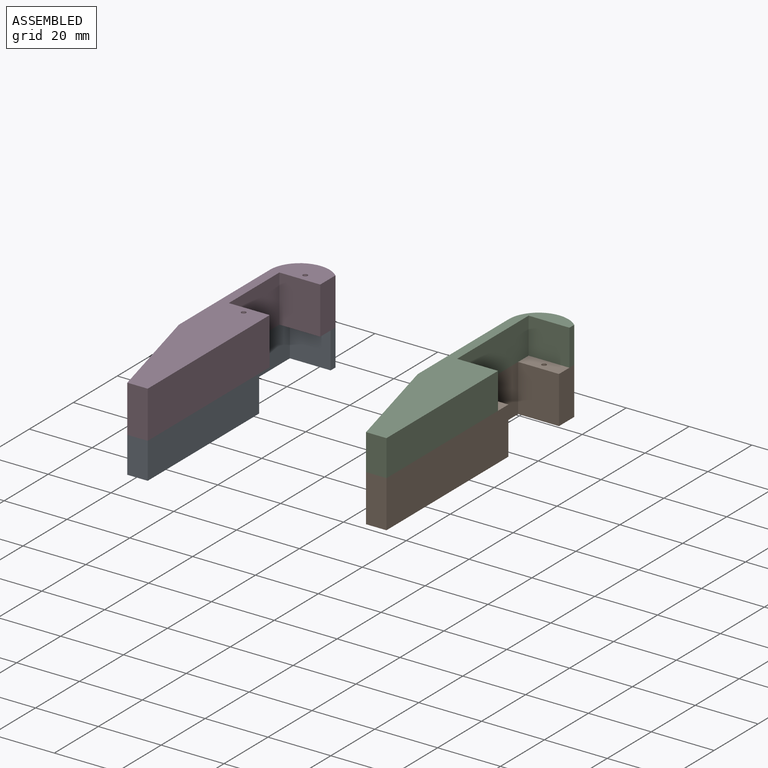
[diagram: assembled view]
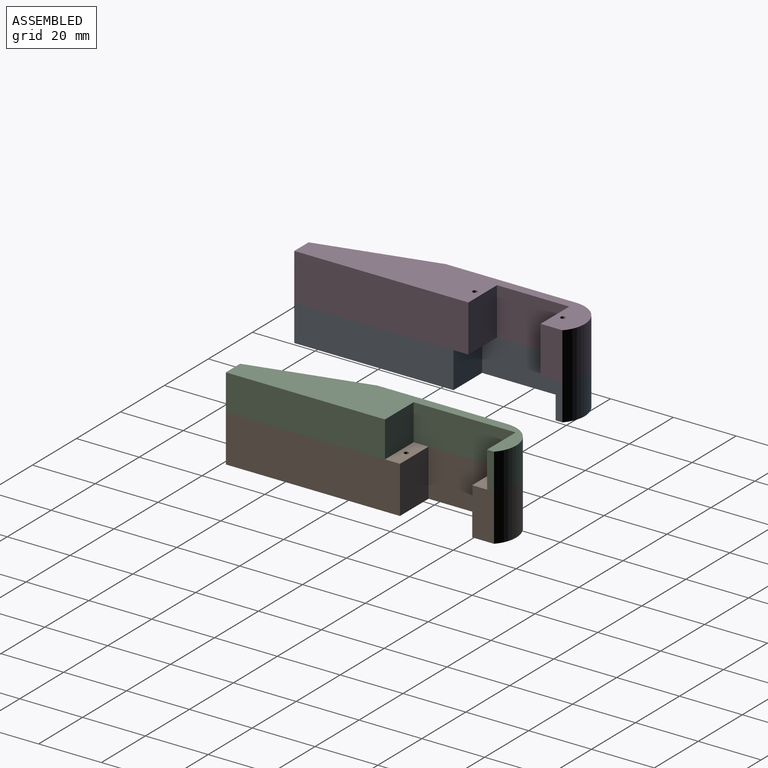
[diagram: assembled view, second angle]
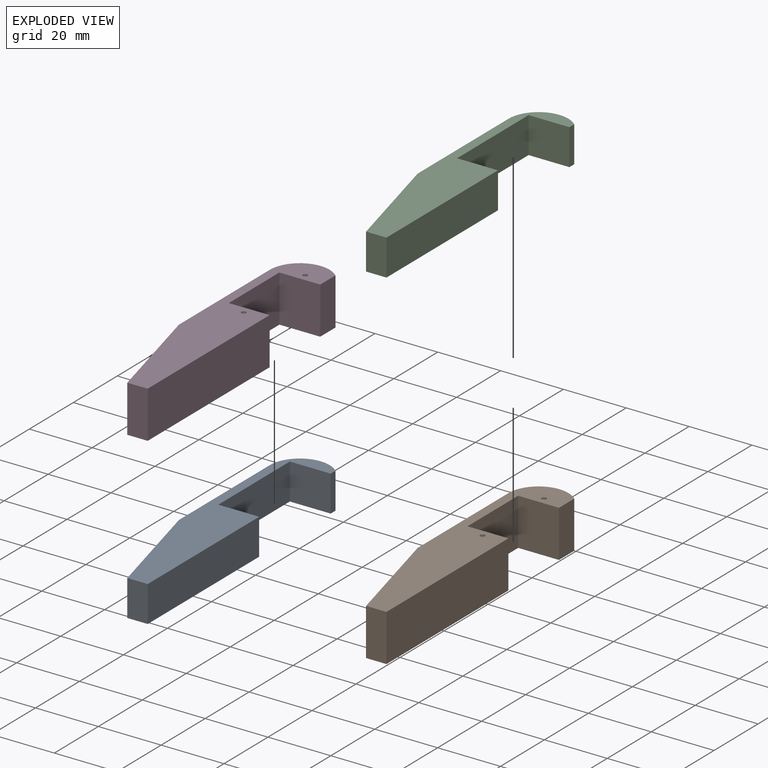
[diagram: exploded view]
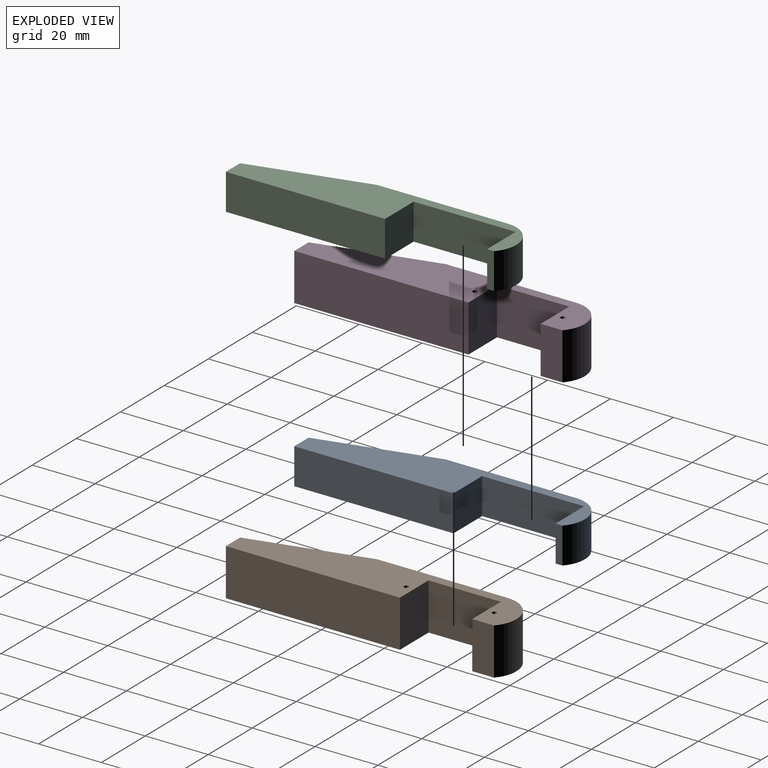
[diagram: exploded view, second angle]
ASSEMBLY  parts=4 mates=2
PART A: 11 faces, bbox 16x87.9x11.5 mm
  f0: plane 37.02x11.5mm, normal (-0.97,-0.25,0), area 439.5mm2, adj f1,f8,f9,f10
  f1: plane 11.5x6.5mm, normal (0,-1,0), area 74.7mm2, adj f0,f2,f9,f10
  f2: plane 50.68x11.5mm, normal (1,0,0), area 582.8mm2, adj f1,f3,f9,f10
  f3: plane 13x11.5mm, normal (0,1,0), area 149.5mm2, adj f2,f4,f9,f10
  f4: plane 32.5x11.5mm, normal (1,0,0), area 373.8mm2, adj f3,f5,f9,f10
  f5: plane 13x11.5mm, normal (0,-1,0), area 149.5mm2, adj f4,f6,f9,f10
  f6: plane 11.5x2.18mm, normal (1,0,0), area 25mm2, adj f5,f7,f9,f10
  f7: cylinder r=9.5mm len=16mm, axis (0,0,-1), area 253.9mm2, adj f6,f8,f9,f10
  f8: plane 41.41x11.5mm, normal (-1,0,0), area 476.2mm2, adj f0,f7,f9,f10
  f9: plane 87.93x16mm, normal (0,0,1), area 783.9mm2, adj f0,f1,f2,f3,f4,f5,f6,f7
  f10: plane 87.93x16mm, normal (0,0,-1), area 783.9mm2, adj f0,f1,f2,f3,f4,f5,f6,f7
PART B: 13 faces, bbox 16x87.9x15 mm
  f0: plane 23x15mm, normal (1,0,0), area 345mm2, adj f1,f10,f11,f12
  f1: plane 15x13mm, normal (0,-1,0), area 195mm2, adj f0,f2,f11,f12
  f2: plane 15x6.93mm, normal (1,0,0), area 103.9mm2, adj f1,f3,f11,f12
  f3: cylinder r=9.5mm len=16mm, axis (0,0,-1), area 331.2mm2, adj f2,f4,f11,f12
  f4: plane 41.41x15mm, normal (-1,0,0), area 621.1mm2, adj f3,f5,f11,f12
  f5: plane 37.02x15mm, normal (-0.97,-0.25,0), area 573.3mm2, adj f4,f6,f11,f12
  f6: plane 15x6.5mm, normal (0,-1,0), area 97.5mm2, adj f5,f7,f11,f12
  f7: plane 55.43x15mm, normal (1,0,0), area 831.4mm2, adj f6,f10,f11,f12
  f8: cylinder r=0.75mm len=15mm, axis (0,0,-1), area 70.7mm2, adj f11,f12
  f9: cylinder r=0.75mm len=15mm, axis (0,0,-1), area 70.7mm2, adj f11,f12
  f10: plane 15x13mm, normal (0,1,0), area 195mm2, adj f0,f7,f11,f12
  f11: plane 87.93x16mm, normal (0,0,1), area 903.9mm2, adj f0,f1,f2,f3,f4,f5,f6,f7
  f12: plane 87.93x16mm, normal (0,0,-1), area 903.9mm2, adj f0,f1,f2,f3,f4,f5,f6,f7
PART C: same geometry as A
PART D: same geometry as B
PLACE A t=(-67.76,7.49,-13.22)mm
PLACE B t=(12.87,28.03,-19.13)mm
PLACE C t=(-6.52,28.58,-4.13)mm
PLACE D t=(-48.37,6.95,-1.72)mm
MATE fastened C.f10 <-> B.f11  axis (0,0,-1) through (82.01,-8.99,-4.13)mm
MATE fastened A.f9 <-> D.f12  axis (0,0,1) through (20.77,-30.08,-1.72)mm
